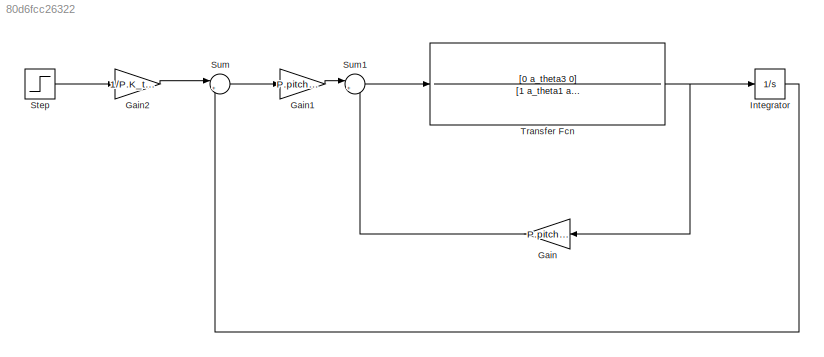
MODEL slx_80d6fcc26322
KIND model
CONFIG AbsTol = auto
CONFIG EnableMultiTasking = off
CONFIG FixedStep = auto
CONFIG MaxStep = auto
CONFIG MinStep = auto
CONFIG RelTol = 1e-3
CONFIG SampleTimeConstraint = Unconstrained
CONFIG SolverName = VariableStepAuto
CONFIG StartTime = 0.0
CONFIG StopTime = 10.0
BLOCK [Gain] Gain
  Gain = P.pitch_kd
  NameLocation = top
BLOCK [Gain] Gain1
  Gain = P.pitch_kp
BLOCK [Gain] Gain2
  Gain = 1/P.K_theta_DC
BLOCK [Integrator] Integrator
  Ports = [1, 1]
BLOCK [Step] Step
  SampleTime = 0
BLOCK [Sum] Sum
  Inputs = |+-
  Ports = [2, 1]
BLOCK [Sum] Sum1
  Inputs = |+-
  Ports = [2, 1]
BLOCK [TransferFcn] Transfer Fcn
  Denominator = [1 a_theta1 a_theta2]
  Numerator = [0 a_theta3 0]
LINE Gain1:1 -> Sum1:1
LINE Gain2:1 -> Sum:1
LINE Gain:1 -> Sum1:2
LINE Integrator:1 -> Sum:2
LINE Step:1 -> Gain2:1
LINE Sum1:1 -> Transfer Fcn:1
LINE Sum:1 -> Gain1:1
NET Transfer Fcn:1 -> Gain:1, Integrator:1
note: NET lines group one-source signal fan-out (src -> all destinations, sorted); 1:1 wires keep LINE
